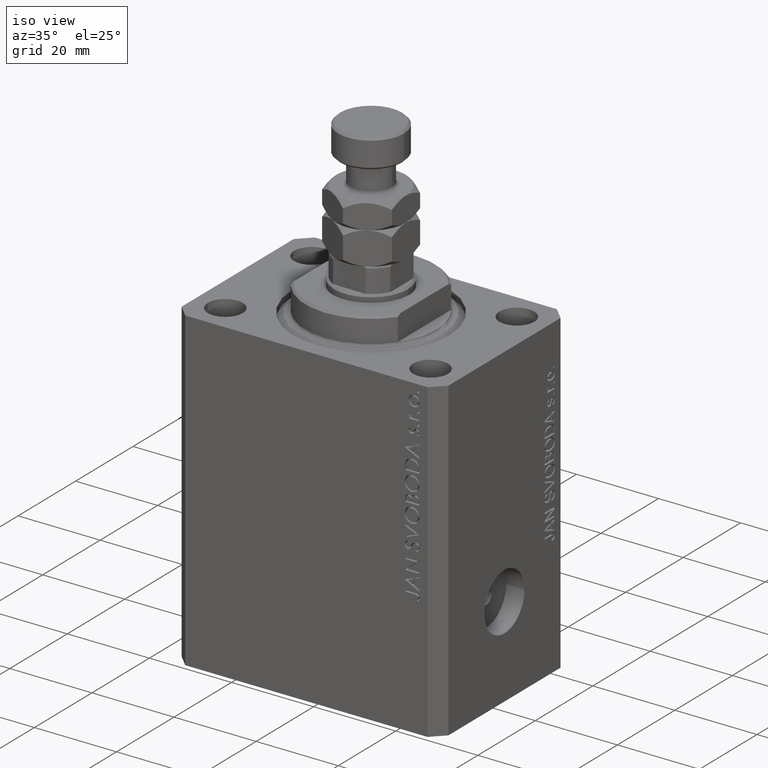
[diagram: clean part render]
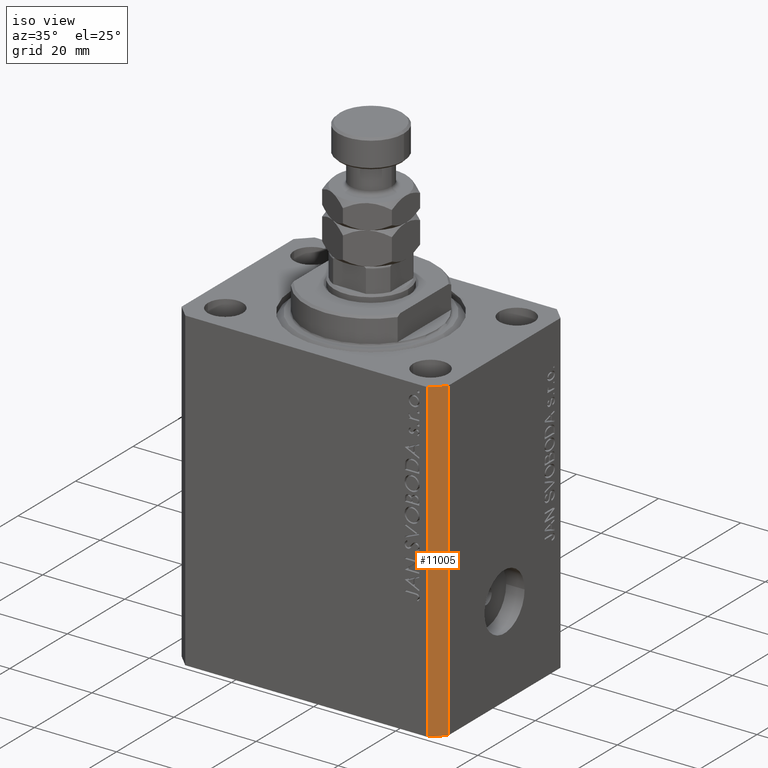
[diagram: same view with one face highlighted and labeled with its STEP entity id]
A machine part, iso view. The second image highlights one B-rep face of the part: STEP entity #11005.
In plain terms, the highlighted planar face has unit normal (0.7071, -0.7071, 0).
Its self-contained STEP definition (entity closure, byte-faithful):
#1010 = ORIENTED_EDGE ( 'NONE', *, *, #10208, .T. ) ;
#2730 = DIRECTION ( 'NONE',  ( 0.7071067811865466846, -0.7071067811865483499, 0.000000000000000000 ) ) ;
#4201 = LINE ( 'NONE', #11156, #36306 ) ;
#5366 = VERTEX_POINT ( 'NONE', #27402 ) ;
#7165 = DIRECTION ( 'NONE',  ( 0.000000000000000000, 0.000000000000000000, 1.000000000000000000 ) ) ;
#9684 = PLANE ( 'NONE',  #44181 ) ;
#10208 = EDGE_CURVE ( 'NONE', #27145, #5366, #4201, .T. ) ;
#10565 = VECTOR ( 'NONE', #7165, 1000.000000000000000 ) ;
#11005 = ADVANCED_FACE ( 'NONE', ( #17372 ), #9684, .T. ) ;
#11156 = CARTESIAN_POINT ( 'NONE',  ( 29.49999999999650413, -22.49999999999949196, -77.00000000000000000 ) ) ;
#11556 = LINE ( 'NONE', #14524, #19408 ) ;
#14524 = CARTESIAN_POINT ( 'NONE',  ( 32.49999999999651124, -19.49999999999949196, -77.00000000000000000 ) ) ;
#14536 = EDGE_LOOP ( 'NONE', ( #15283, #16718, #1010, #20945 ) ) ;
#15283 = ORIENTED_EDGE ( 'NONE', *, *, #48964, .F. ) ;
#16299 = LINE ( 'NONE', #38430, #34726 ) ;
#16401 = CARTESIAN_POINT ( 'NONE',  ( 32.49999999999651124, -19.49999999999949196, 0.000000000000000000 ) ) ;
#16632 = CARTESIAN_POINT ( 'NONE',  ( 29.49999999999650413, -22.49999999999949196, 0.000000000000000000 ) ) ;
#16718 = ORIENTED_EDGE ( 'NONE', *, *, #34853, .F. ) ;
#17372 = FACE_OUTER_BOUND ( 'NONE', #14536, .T. ) ;
#18342 = CARTESIAN_POINT ( 'NONE',  ( 29.49999999999650413, -22.49999999999949196, -77.00000000000000000 ) ) ;
#19408 = VECTOR ( 'NONE', #22715, 1000.000000000000000 ) ;
#20945 = ORIENTED_EDGE ( 'NONE', *, *, #37371, .T. ) ;
#22715 = DIRECTION ( 'NONE',  ( 0.000000000000000000, 0.000000000000000000, 1.000000000000000000 ) ) ;
#24341 = VERTEX_POINT ( 'NONE', #16401 ) ;
#27145 = VERTEX_POINT ( 'NONE', #27813 ) ;
#27402 = CARTESIAN_POINT ( 'NONE',  ( 32.49999999999651124, -19.49999999999949196, -77.00000000000000000 ) ) ;
#27813 = CARTESIAN_POINT ( 'NONE',  ( 29.49999999999650413, -22.49999999999949196, -77.00000000000000000 ) ) ;
#33020 = DIRECTION ( 'NONE',  ( 0.7071067811865483499, 0.7071067811865466846, 0.000000000000000000 ) ) ;
#33743 = LINE ( 'NONE', #48641, #10565 ) ;
#34726 = VECTOR ( 'NONE', #46129, 1000.000000000000000 ) ;
#34753 = VERTEX_POINT ( 'NONE', #16632 ) ;
#34853 = EDGE_CURVE ( 'NONE', #27145, #34753, #33743, .T. ) ;
#36306 = VECTOR ( 'NONE', #48903, 1000.000000000000000 ) ;
#37371 = EDGE_CURVE ( 'NONE', #5366, #24341, #11556, .T. ) ;
#38430 = CARTESIAN_POINT ( 'NONE',  ( 29.49999999999650413, -22.49999999999949196, 0.000000000000000000 ) ) ;
#44181 = AXIS2_PLACEMENT_3D ( 'NONE', #18342, #2730, #33020 ) ;
#46129 = DIRECTION ( 'NONE',  ( 0.7071067811865483499, 0.7071067811865466846, 0.000000000000000000 ) ) ;
#48641 = CARTESIAN_POINT ( 'NONE',  ( 29.49999999999650413, -22.49999999999949196, -77.00000000000000000 ) ) ;
#48903 = DIRECTION ( 'NONE',  ( 0.7071067811865483499, 0.7071067811865466846, 0.000000000000000000 ) ) ;
#48964 = EDGE_CURVE ( 'NONE', #34753, #24341, #16299, .T. ) ;